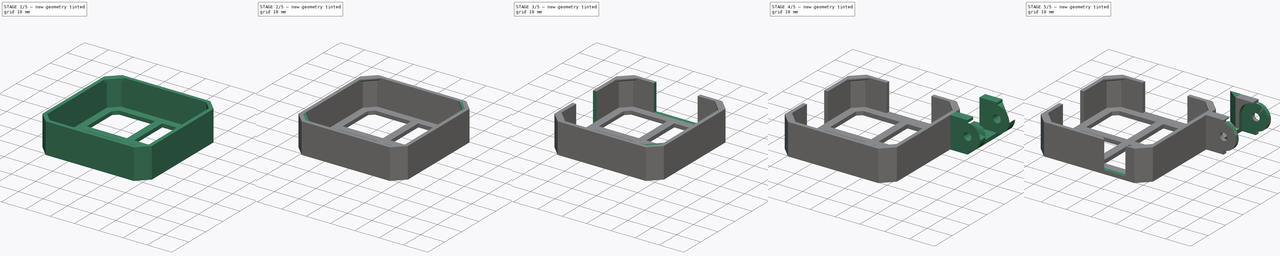
[diagram: build sequence overview — one tinted view per stage of 5, left to right]
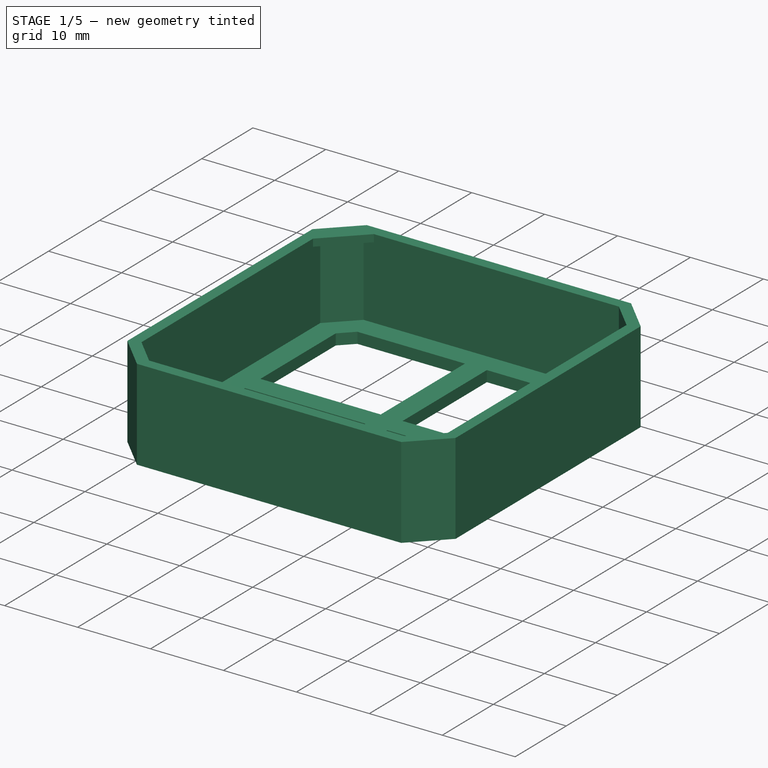
[diagram: stage 1 of 5 — iso view after this stage's code; geometry added in this stage tinted green]
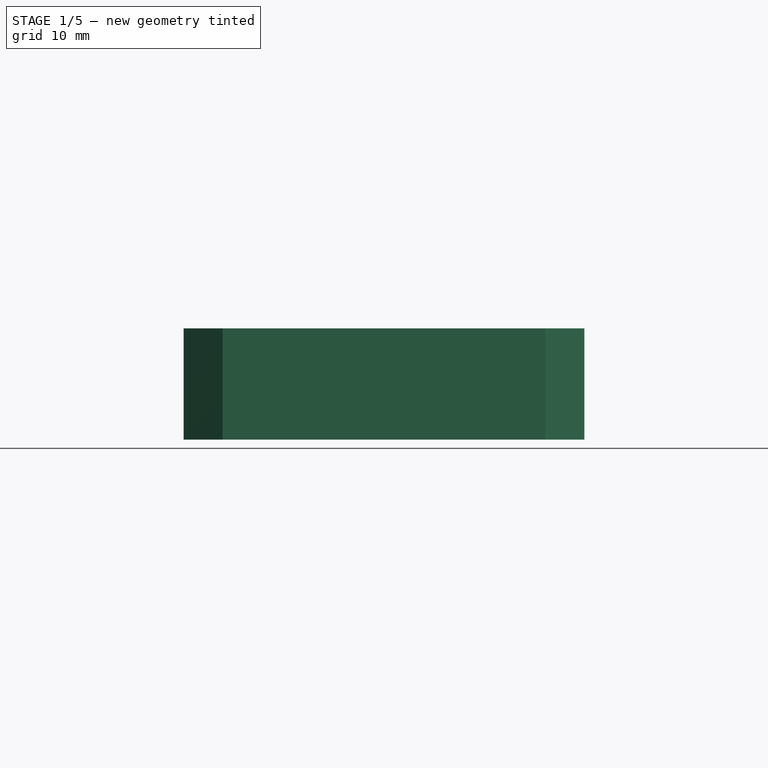
[diagram: stage 1 of 5 — front view after this stage's code; geometry added in this stage tinted green]
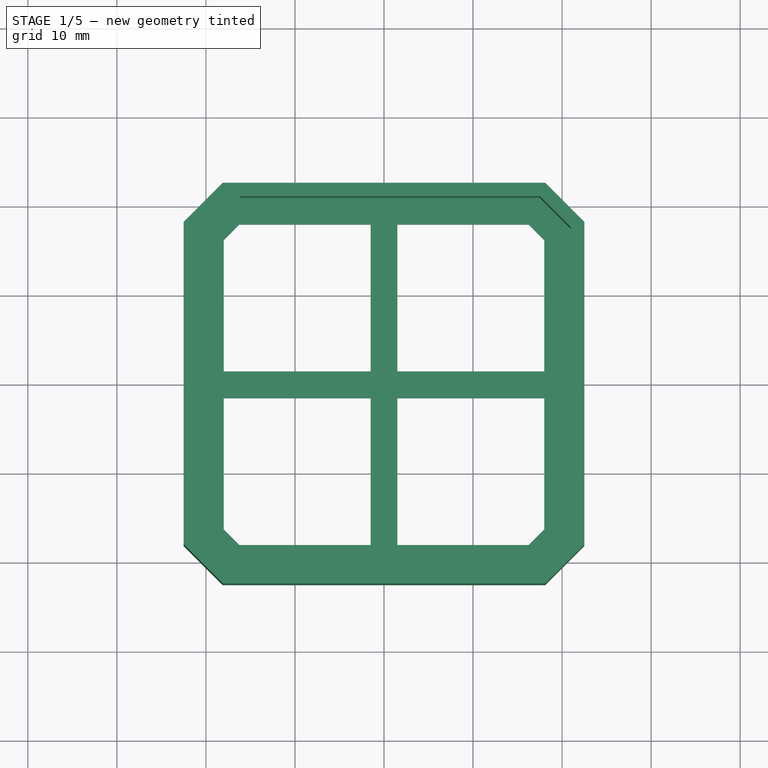
[diagram: stage 1 of 5 — top view after this stage's code; geometry added in this stage tinted green]
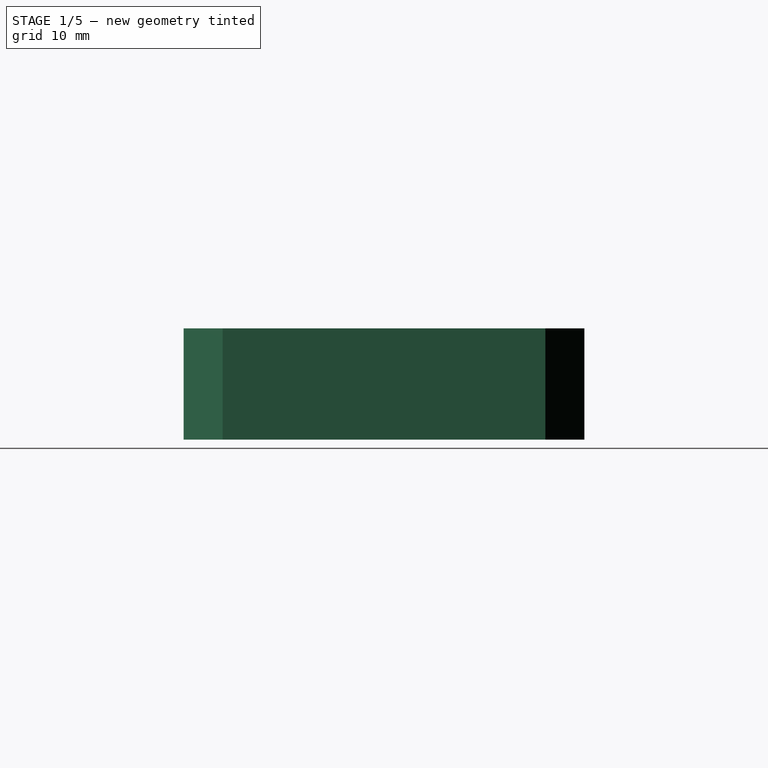
[diagram: stage 1 of 5 — right view after this stage's code; geometry added in this stage tinted green]
FCSTD DOCUMENT  (FreeCAD 0.17R13541 (Git))
Label: CableCareerExtruder1
License: All rights reserved
LicenseURL: http://en.wikipedia.org/wiki/All_rights_reserved
objects: Sketcher::SketchObject×18, PartDesign::Pocket×9, PartDesign::Pad×8, PartDesign::Chamfer×4, PartDesign::Body×1
note: 57 computed .brp shape members not serialized (recipe doc carries the construction recipe); baked Part::Feature solids carry a one-line shape summary decoded from their .brp

FEATURE [Sketcher::SketchObject] Sketch
  MapMode = 5
  Support = -> [XY_Plane]
  sketch-geometry (8):
    g0: LineSegment StartX=-17.5 StartY=21 StartZ=0 EndX=17.5 EndY=21 EndZ=0
    g1: LineSegment StartX=17.5 StartY=21 StartZ=0 EndX=21 EndY=17.5 EndZ=0
    g2: LineSegment StartX=21 StartY=17.5 StartZ=0 EndX=21 EndY=-17.5 EndZ=0
    g3: LineSegment StartX=21 StartY=-17.5 StartZ=0 EndX=17.5 EndY=-21 EndZ=0
    g4: LineSegment StartX=17.5 StartY=-21 StartZ=0 EndX=-17.5 EndY=-21 EndZ=0
    g5: LineSegment StartX=-17.5 StartY=-21 StartZ=0 EndX=-21 EndY=-17.5 EndZ=0
    g6: LineSegment StartX=-21 StartY=-17.5 StartZ=0 EndX=-21 EndY=17.5 EndZ=0
    g7: LineSegment StartX=-21 StartY=17.5 StartZ=0 EndX=-17.5 EndY=21 EndZ=0
  constraints (24):
    c: Coincident(g0,g1)
    c: Coincident(g1,g2)
    c: Coincident(g2,g3)
    c: Coincident(g3,g4)
    c: Coincident(g4,g5)
    c: Coincident(g5,g6)
    c: Coincident(g6,g7)
    c: Coincident(g7,g0)
    c: Horizontal(g0)
    c: Horizontal(g4)
    c: Vertical(g6)
    c: Vertical(g2)
    c: Angle(g7,g0) = 2.35619
    c: Angle(g0,g1) = 2.35619
    c: Angle(g4,g5) = 2.35619
    c: Angle(g3,g4) = 2.35619
    c: DistanceX(g0,g0) = 35
    c: DistanceX(g4,g4) = 35
    c: DistanceY(g6,g6) = 35
    c: DistanceY(g2,g2) = 35
    c: DistanceX(g6,g1) = 42
    c: DistanceY(g6,g1) = 0
    c: Distance(g-1,g0) = 21
    c: Distance(g-1,g6) = 21
FEATURE [Sketcher::SketchObject] Sketch001
  ExternalGeometry = -> [Sketch]
  MapMode = 5
  Support = -> [XY_Plane]
  sketch-geometry (8):
    g0: LineSegment StartX=-22.5 StartY=18.1213 StartZ=0 EndX=-18.1213 EndY=22.5 EndZ=0
    g1: LineSegment StartX=-18.1213 StartY=22.5 StartZ=0 EndX=18.1213 EndY=22.5 EndZ=0
    g2: LineSegment StartX=18.1213 StartY=22.5 StartZ=0 EndX=22.5 EndY=18.1213 EndZ=0
    g3: LineSegment StartX=22.5 StartY=18.1213 StartZ=0 EndX=22.5 EndY=-18.1213 EndZ=0
    g4: LineSegment StartX=22.5 StartY=-18.1213 StartZ=0 EndX=18.1213 EndY=-22.5 EndZ=0
    g5: LineSegment StartX=18.1213 StartY=-22.5 StartZ=0 EndX=-18.1213 EndY=-22.5 EndZ=0
    g6: LineSegment StartX=-18.1213 StartY=-22.5 StartZ=0 EndX=-22.5 EndY=-18.1213 EndZ=0
    g7: LineSegment StartX=-22.5 StartY=-18.1213 StartZ=0 EndX=-22.5 EndY=18.1213 EndZ=0
  constraints (24):
    c: Coincident(g0,g1)
    c: Coincident(g1,g2)
    c: Coincident(g2,g3)
    c: Coincident(g3,g4)
    c: Coincident(g4,g5)
    c: Coincident(g5,g6)
    c: Coincident(g6,g7)
    c: Coincident(g7,g0)
    c: Parallel(g-3,g0)
    c: Parallel(g-5,g2)
    c: Parallel(g4,g-10)
    c: Parallel(g6,g-9)
    c: Parallel(g5,g-8)
    c: Parallel(g7,g-7)
    c: Parallel(g-4,g1)
    c: Parallel(g-6,g3)
    c: Distance(g-4,g1) = 1.5
    c: Distance(g-7,g7) = 1.5
    c: Distance(g-10,g5) = 1.5
    c: Distance(g-10,g3) = 1.5
    c: Distance(g-9,g6) = 1.5
    c: Distance(g-7,g0) = 1.5
    c: Distance(g-5,g2) = 1.5
    c: Distance(g-10,g4) = 1.5
FEATURE [PartDesign::Pad] Pad
  Length = 12.5
  Length2 = 100
  Profile = -> Sketch001
  Type = 0
FEATURE [Sketcher::SketchObject] Sketch002
  ExternalGeometry = -> [Sketch]
  MapMode = 5
  Placement = pos=(0,0,12.5) rot=(0,0,1;0rad)
  Support = -> [Pad]
  sketch-geometry (8):
    g0: LineSegment StartX=-21 StartY=17.5 StartZ=0 EndX=-17.5 EndY=21 EndZ=0
    g1: LineSegment StartX=-17.5 StartY=21 StartZ=0 EndX=17.5 EndY=21 EndZ=0
    g2: LineSegment StartX=17.5 StartY=21 StartZ=0 EndX=21 EndY=17.5 EndZ=0
    g3: LineSegment StartX=21 StartY=17.5 StartZ=0 EndX=21 EndY=-17.5 EndZ=0
    g4: LineSegment StartX=21 StartY=-17.5 StartZ=0 EndX=17.5 EndY=-21 EndZ=0
    g5: LineSegment StartX=17.5 StartY=-21 StartZ=0 EndX=-17.5 EndY=-21 EndZ=0
    g6: LineSegment StartX=-17.5 StartY=-21 StartZ=0 EndX=-21 EndY=-17.5 EndZ=0
    g7: LineSegment StartX=-21 StartY=-17.5 StartZ=0 EndX=-21 EndY=17.5 EndZ=0
  constraints (16):
    c: Coincident(g0,g1)
    c: Coincident(g1,g2)
    c: Coincident(g2,g3)
    c: Coincident(g3,g4)
    c: Coincident(g4,g5)
    c: Coincident(g5,g6)
    c: Coincident(g7,g0)
    c: Coincident(g0,g-10)
    c: Coincident(g-4,g0)
    c: Coincident(g-5,g1)
    c: Coincident(g-6,g2)
    c: Coincident(g-7,g3)
    c: Coincident(g-8,g4)
    c: Coincident(g5,g-9)
    c: Coincident(g6,g7)
    c: Coincident(g-10,g6)
FEATURE [PartDesign::Pocket] Pocket
  BaseFeature = -> Pad
  Length = 11
  Length2 = 100
  Profile = -> Sketch002
  Type = 0
FEATURE [Sketcher::SketchObject] Sketch003
  ExternalGeometry = -> [Sketch]
  MapMode = 5
  Placement = pos=(0,0,1.5) rot=(0,0,1;0rad)
  Support = -> [Pocket]
  sketch-geometry (20):
    g0: LineSegment StartX=-16.2574 StartY=18 StartZ=0 EndX=-18 EndY=16.2574 EndZ=0
    g1: LineSegment StartX=-18 StartY=16.2574 StartZ=0 EndX=-18 EndY=1.5 EndZ=0
    g2: LineSegment StartX=-18 StartY=-16.2574 StartZ=0 EndX=-16.2574 EndY=-18 EndZ=0
    g3: LineSegment StartX=-16.2574 StartY=-18 StartZ=0 EndX=-1.5 EndY=-18 EndZ=0
    g4: LineSegment StartX=16.2574 StartY=-18 StartZ=0 EndX=18 EndY=-16.2574 EndZ=0
    g5: LineSegment StartX=18 StartY=1.5 StartZ=0 EndX=18 EndY=16.2574 EndZ=0
    g6: LineSegment StartX=18 StartY=16.2574 StartZ=0 EndX=16.2574 EndY=18 EndZ=0
    g7: LineSegment StartX=-1.5 StartY=18 StartZ=0 EndX=-16.2574 EndY=18 EndZ=0
    g8: LineSegment StartX=-1.5 StartY=18 StartZ=0 EndX=-1.5 EndY=1.5 EndZ=0
    g9: LineSegment StartX=-1.5 StartY=1.5 StartZ=0 EndX=-18 EndY=1.5 EndZ=0
    g10: LineSegment StartX=-18 StartY=-16.2574 StartZ=0 EndX=-18 EndY=-1.5 EndZ=0
    g11: LineSegment StartX=-18 StartY=-1.5 StartZ=0 EndX=-1.5 EndY=-1.5 EndZ=0
    g12: LineSegment StartX=-1.5 StartY=-1.5 StartZ=0 EndX=-1.5 EndY=-18 EndZ=0
    g13: LineSegment StartX=16.2574 StartY=18 StartZ=0 EndX=1.5 EndY=18 EndZ=0
    g14: LineSegment StartX=1.5 StartY=18 StartZ=0 EndX=1.5 EndY=1.5 EndZ=0
    g15: LineSegment StartX=1.5 StartY=1.5 StartZ=0 EndX=18 EndY=1.5 EndZ=0
    g16: LineSegment StartX=18 StartY=-16.2574 StartZ=0 EndX=18 EndY=-1.5 EndZ=0
    g17: LineSegment StartX=18 StartY=-1.5 StartZ=0 EndX=1.5 EndY=-1.5 EndZ=0
    g18: LineSegment StartX=1.5 StartY=-1.5 StartZ=0 EndX=1.5 EndY=-18 EndZ=0
    g19: LineSegment StartX=1.5 StartY=-18 StartZ=0 EndX=16.2574 EndY=-18 EndZ=0
  constraints (60):
    c: Coincident(g0,g1)
    c: Coincident(g2,g3)
    c: Coincident(g5,g6)
    c: Coincident(g7,g0)
    c: Parallel(g7,g-4)
    c: Parallel(g6,g-10)
    c: Parallel(g5,g-9)
    c: Parallel(g4,g-8)
    c: Parallel(g3,g-7)
    c: Parallel(g-6,g2)
    c: Parallel(g1,g-5)
    c: Parallel(g0,g-3)
    c: Distance(g0,g-4) = 3
    c: Distance(g5,g-9) = 3
    c: Distance(g3,g-7) = 3
    c: Distance(g1,g-5) = 3
    c: Distance(g-5,g0) = 3
    c: Distance(g-10,g6) = 3
    c: Distance(g4,g-8) = 3
    c: Distance(g2,g-6) = 3
    c: Coincident(g8,g9)
    c: Horizontal(g9)
    c: Vertical(g8)
    c: Coincident(g8,g7)
    c: Coincident(g9,g1)
    c: DistanceX(g8,g-1) = 1.5
    c: DistanceY(g-1,g8) = 1.5
    c: Coincident(g10,g11)
    c: Coincident(g11,g12)
    c: Vertical(g12)
    c: Vertical(g10)
    c: Horizontal(g11)
    c: Coincident(g2,g10)
    c: Distance(g10,g-5) = 3
    c: DistanceY(g10,g1) = 3
    c: Coincident(g3,g12)
    c: Coincident(g13,g14)
    c: Coincident(g14,g15)
    c: Coincident(g16,g17)
    c: Coincident(g17,g18)
    c: Coincident(g18,g19)
    c: Horizontal(g13)
    c: Horizontal(g15)
    c: Horizontal(g17)
    c: Horizontal(g19)
    c: Vertical(g18)
    c: Vertical(g16)
    c: Vertical(g14)
    c: DistanceX(g7,g13) = 3
    c: DistanceX(g3,g18) = 3
    c: DistanceY(g16,g15) = 3
    c: Distance(g13,g-4) = 3
    c: Coincident(g6,g13)
    c: Coincident(g5,g15)
    c: Coincident(g4,g19)
    c: Coincident(g4,g16)
    c: DistanceX(g-1,g17) = 1.5
    c: DistanceY(g17,g-1) = 1.5
    c: Distance(g16,g-9) = 3
    c: Distance(g18,g-7) = 3
FEATURE [PartDesign::Pocket] Pocket001
  BaseFeature = -> Pocket
  Length = 1.5
  Length2 = 100
  Profile = -> Sketch003
  Type = 0
FEATURE [Sketcher::SketchObject] Sketch052
  ExternalGeometry = -> [Pocket001]
  MapMode = 5
  Placement = pos=(-19.25,19.25,0) rot=(0.862856,0.357407,0.357407;1.71777rad)
  Support = -> [Pocket001]
  sketch-geometry (4):
    g0: LineSegment StartX=3.5 StartY=12.5 StartZ=0 EndX=-3.5 EndY=12.5 EndZ=0
    g1: LineSegment StartX=-3.5 StartY=12.5 StartZ=0 EndX=-3.5 EndY=11.5 EndZ=0
    g2: LineSegment StartX=-3.5 StartY=11.5 StartZ=0 EndX=3.5 EndY=11.5 EndZ=0
    g3: LineSegment StartX=3.5 StartY=11.5 StartZ=0 EndX=3.5 EndY=12.5 EndZ=0
  constraints (12):
    c: Coincident(g0,g1)
    c: Coincident(g1,g2)
    c: Coincident(g2,g3)
    c: Coincident(g3,g0)
    c: Horizontal(g0)
    c: Horizontal(g2)
    c: Vertical(g1)
    c: Vertical(g3)
    c: PointOnObject(g0,g-3)
    c: DistanceX(g-2,g0) = 3.5
    c: DistanceX(g0,g0) = 7
    c: DistanceY(g1,g1) = -1
FEATURE [PartDesign::Pad] Pad001
  BaseFeature = -> Pocket001
  Length = 1
  Length2 = 100
  Profile = -> Sketch052
  Type = 0
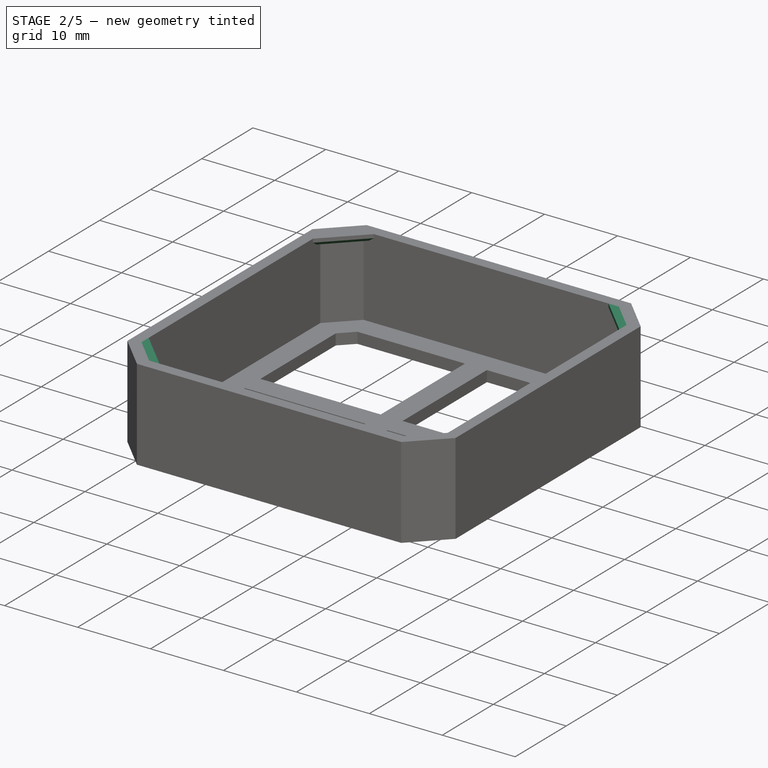
[diagram: stage 2 of 5 — iso view after this stage's code; geometry added in this stage tinted green]
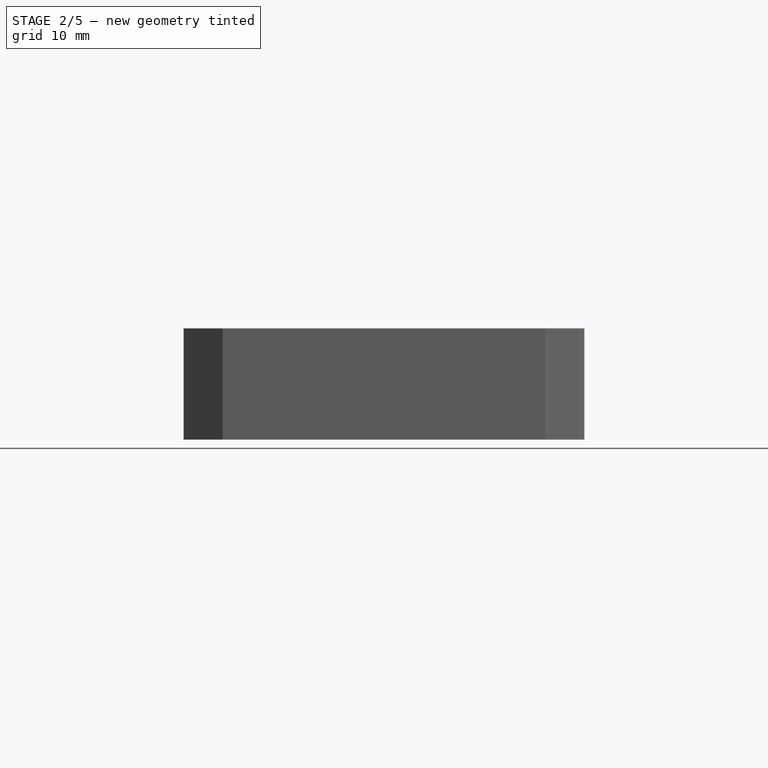
[diagram: stage 2 of 5 — front view after this stage's code; geometry added in this stage tinted green]
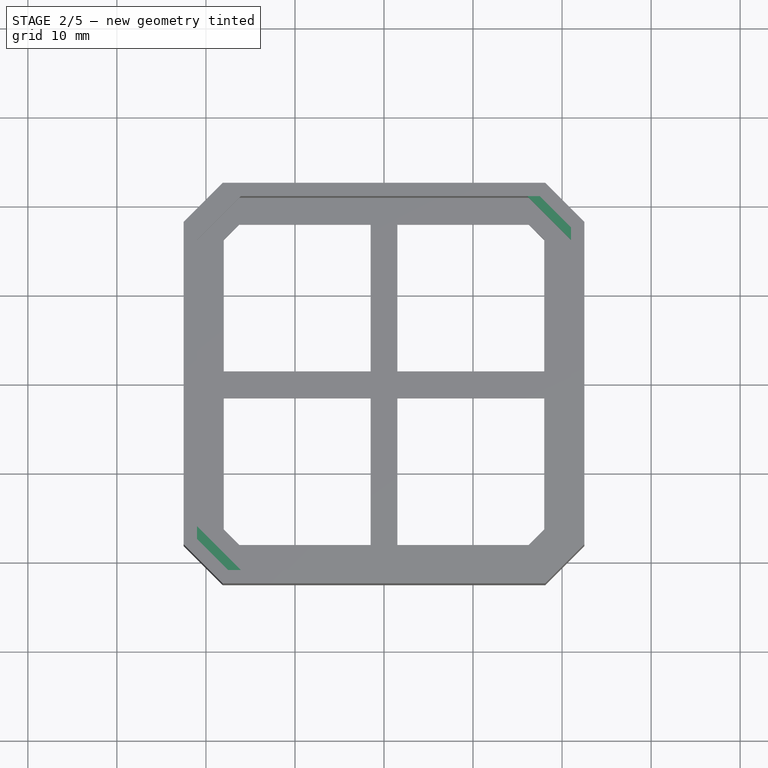
[diagram: stage 2 of 5 — top view after this stage's code; geometry added in this stage tinted green]
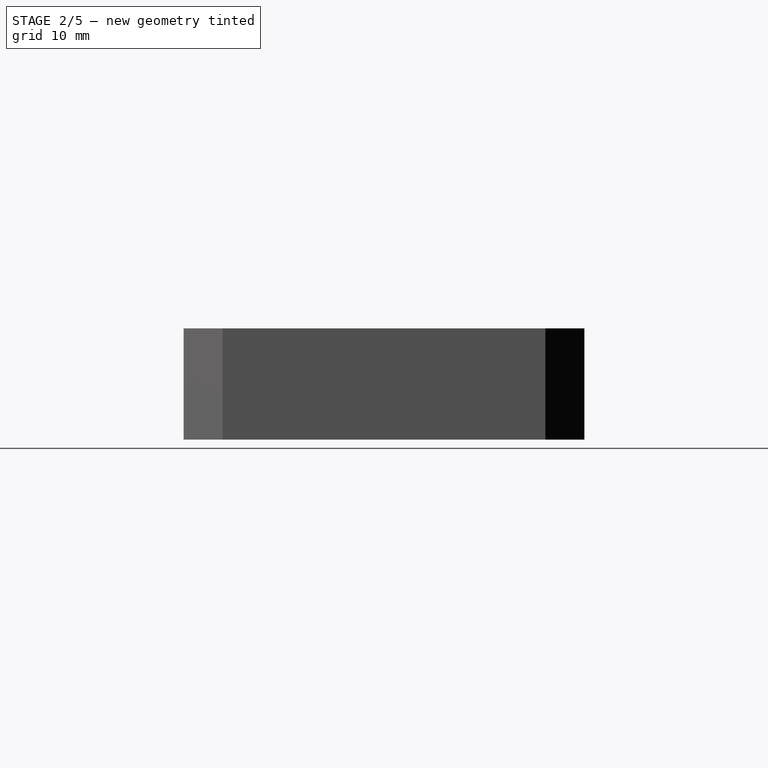
[diagram: stage 2 of 5 — right view after this stage's code; geometry added in this stage tinted green]
FEATURE [PartDesign::Chamfer] Chamfer
  Base = -> Pad001 [Edge122]
  BaseFeature = -> Pad001
  Size = 0.5
FEATURE [Sketcher::SketchObject] Sketch053
  ExternalGeometry = -> [Chamfer]
  MapMode = 5
  Placement = pos=(19.25,19.25,0) rot=(0.862856,-0.357407,-0.357407;1.71777rad)
  Support = -> [Chamfer]
  sketch-geometry (4):
    g0: LineSegment StartX=-3.5 StartY=12.5 StartZ=0 EndX=3.5 EndY=12.5 EndZ=0
    g1: LineSegment StartX=3.5 StartY=12.5 StartZ=0 EndX=3.5 EndY=11.5 EndZ=0
    g2: LineSegment StartX=3.5 StartY=11.5 StartZ=0 EndX=-3.5 EndY=11.5 EndZ=0
    g3: LineSegment StartX=-3.5 StartY=11.5 StartZ=0 EndX=-3.5 EndY=12.5 EndZ=0
  constraints (12):
    c: Coincident(g0,g1)
    c: Coincident(g1,g2)
    c: Coincident(g2,g3)
    c: Coincident(g3,g0)
    c: Horizontal(g0)
    c: Horizontal(g2)
    c: Vertical(g1)
    c: Vertical(g3)
    c: DistanceX(g-2,g0) = 3.5
    c: DistanceY(g3,g3) = 1
    c: DistanceX(g0,g0) = 7
    c: PointOnObject(g0,g-3)
FEATURE [PartDesign::Pad] Pad002
  BaseFeature = -> Chamfer
  Length = 1
  Length2 = 100
  Profile = -> Sketch053
  Type = 0
FEATURE [PartDesign::Chamfer] Chamfer001
  Base = -> Pad002 [Edge76]
  BaseFeature = -> Pad002
  Size = 0.5
FEATURE [Sketcher::SketchObject] Sketch054
  ExternalGeometry = -> [Chamfer001]
  MapMode = 5
  Placement = pos=(-19.25,-19.25,0) rot=(0.281085,0.678598,0.678598;2.59356rad)
  Support = -> [Chamfer001]
  sketch-geometry (4):
    g0: LineSegment StartX=-3.5 StartY=12.5 StartZ=0 EndX=3.5 EndY=12.5 EndZ=0
    g1: LineSegment StartX=3.5 StartY=12.5 StartZ=0 EndX=3.5 EndY=11.5 EndZ=0
    g2: LineSegment StartX=3.5 StartY=11.5 StartZ=0 EndX=-3.5 EndY=11.5 EndZ=0
    g3: LineSegment StartX=-3.5 StartY=11.5 StartZ=0 EndX=-3.5 EndY=12.5 EndZ=0
  constraints (12):
    c: Coincident(g0,g1)
    c: Coincident(g1,g2)
    c: Coincident(g2,g3)
    c: Coincident(g3,g0)
    c: Horizontal(g0)
    c: Horizontal(g2)
    c: Vertical(g1)
    c: Vertical(g3)
    c: PointOnObject(g0,g-3)
    c: DistanceX(g-2,g1) = 3.5
    c: DistanceX(g2,g2) = 7
    c: DistanceY(g3,g3) = -1
FEATURE [PartDesign::Pad] Pad003
  BaseFeature = -> Chamfer001
  Length = 1
  Length2 = 100
  Profile = -> Sketch054
  Type = 0
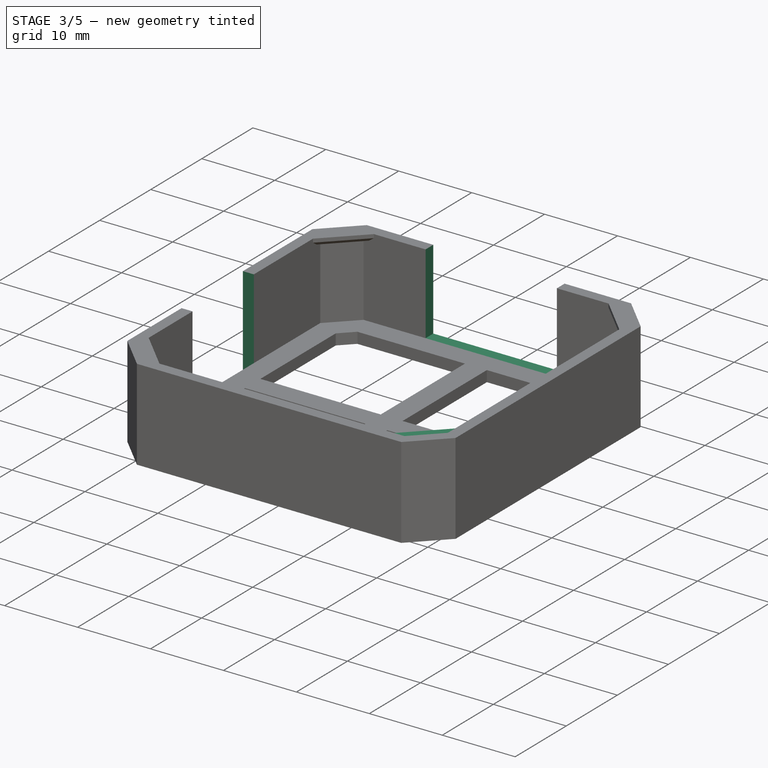
[diagram: stage 3 of 5 — iso view after this stage's code; geometry added in this stage tinted green]
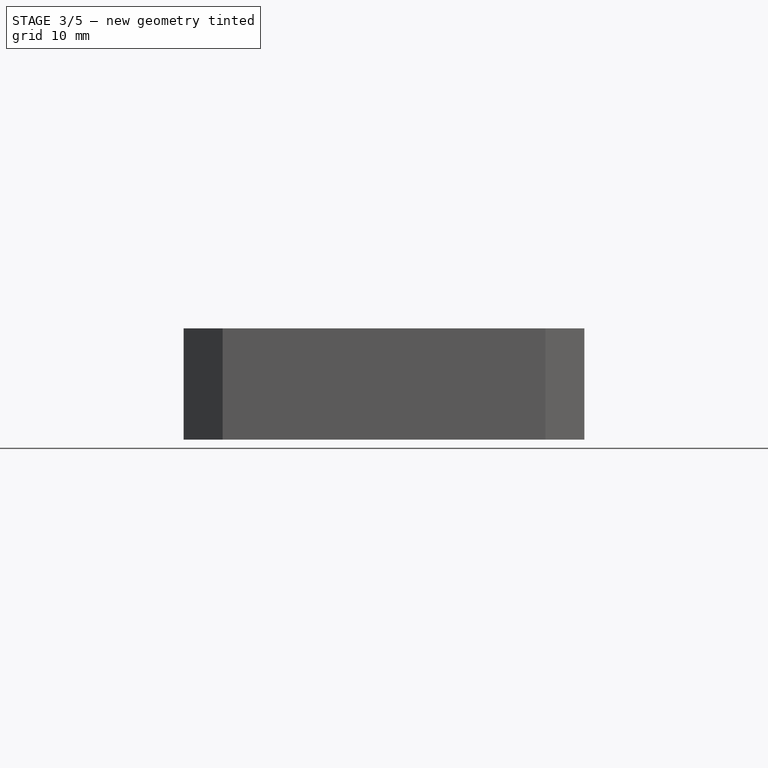
[diagram: stage 3 of 5 — front view after this stage's code; geometry added in this stage tinted green]
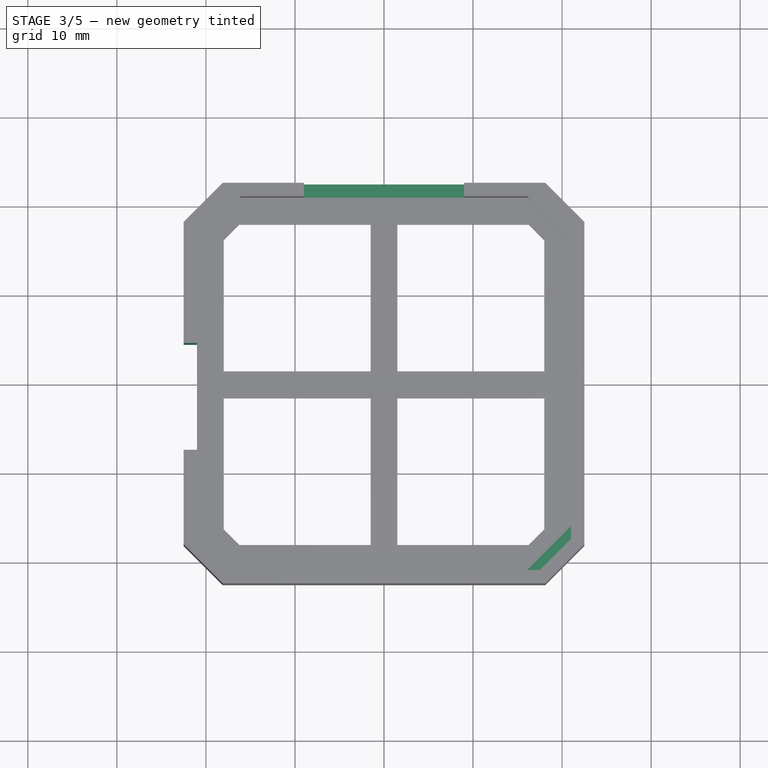
[diagram: stage 3 of 5 — top view after this stage's code; geometry added in this stage tinted green]
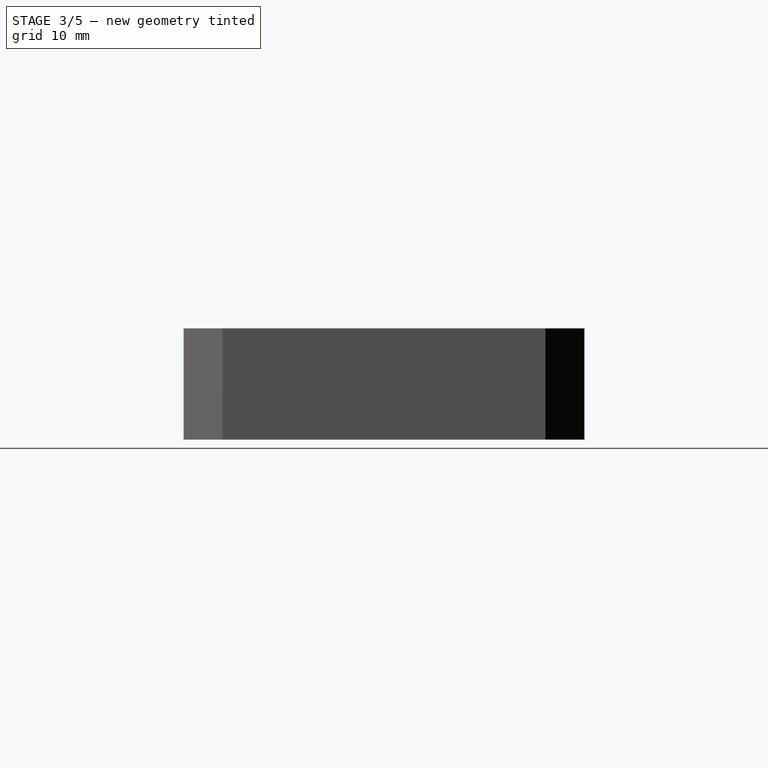
[diagram: stage 3 of 5 — right view after this stage's code; geometry added in this stage tinted green]
FEATURE [PartDesign::Chamfer] Chamfer002
  Base = -> Pad003 [Edge159]
  BaseFeature = -> Pad003
  Size = 0.5
FEATURE [Sketcher::SketchObject] Sketch055
  ExternalGeometry = -> [Chamfer002]
  MapMode = 5
  Placement = pos=(19.25,-19.25,0) rot=(-0.281085,0.678598,0.678598;3.68962rad)
  Support = -> [Chamfer002]
  sketch-geometry (4):
    g0: LineSegment StartX=-3.5 StartY=12.5 StartZ=0 EndX=3.5 EndY=12.5 EndZ=0
    g1: LineSegment StartX=3.5 StartY=12.5 StartZ=0 EndX=3.5 EndY=11.5 EndZ=0
    g2: LineSegment StartX=3.5 StartY=11.5 StartZ=0 EndX=-3.5 EndY=11.5 EndZ=0
    g3: LineSegment StartX=-3.5 StartY=11.5 StartZ=0 EndX=-3.5 EndY=12.5 EndZ=0
  constraints (12):
    c: Coincident(g0,g1)
    c: Coincident(g1,g2)
    c: Coincident(g2,g3)
    c: Coincident(g3,g0)
    c: Horizontal(g0)
    c: Horizontal(g2)
    c: Vertical(g1)
    c: Vertical(g3)
    c: DistanceY(g1,g1) = 1
    c: PointOnObject(g-3,g0)
    c: DistanceX(g-2,g0) = 3.5
    c: DistanceX(g0,g0) = 7
FEATURE [PartDesign::Pad] Pad004
  BaseFeature = -> Chamfer002
  Length = 1
  Length2 = 100
  Profile = -> Sketch055
  Type = 0
FEATURE [PartDesign::Chamfer] Chamfer003
  Base = -> Pad004 [Edge101]
  BaseFeature = -> Pad004
  Size = 0.5
FEATURE [Sketcher::SketchObject] Sketch056
  ExternalGeometry = -> [Chamfer003]
  MapMode = 5
  Placement = pos=(0,0,12.5) rot=(0,0,1;0rad)
  Support = -> [Chamfer003]
  sketch-geometry (4):
    g0: LineSegment StartX=-22.5 StartY=4.5 StartZ=0 EndX=-21 EndY=4.5 EndZ=0
    g1: LineSegment StartX=-21 StartY=4.5 StartZ=0 EndX=-21 EndY=-7.5 EndZ=0
    g2: LineSegment StartX=-21 StartY=-7.5 StartZ=0 EndX=-22.5 EndY=-7.5 EndZ=0
    g3: LineSegment StartX=-22.5 StartY=-7.5 StartZ=0 EndX=-22.5 EndY=4.5 EndZ=0
  constraints (12):
    c: Coincident(g0,g1)
    c: Coincident(g1,g2)
    c: Coincident(g2,g3)
    c: Coincident(g3,g0)
    c: Horizontal(g0)
    c: Horizontal(g2)
    c: Vertical(g1)
    c: Vertical(g3)
    c: PointOnObject(g2,g-3)
    c: PointOnObject(g1,g-4)
    c: DistanceY(g-5,g0) = 6
    c: DistanceY(g3,g3) = 12
FEATURE [PartDesign::Pocket] Pocket002
  BaseFeature = -> Chamfer003
  Length = 12.5
  Length2 = 100
  Profile = -> Sketch056
  Type = 0
FEATURE [Sketcher::SketchObject] Sketch057
  ExternalGeometry = -> [Pocket002]
  MapMode = 5
  Placement = pos=(0,0,12.5) rot=(0,0,1;0rad)
  Support = -> [Pocket002]
  sketch-geometry (4):
    g0: LineSegment StartX=-9 StartY=22.5 StartZ=0 EndX=9 EndY=22.5 EndZ=0
    g1: LineSegment StartX=9 StartY=22.5 StartZ=0 EndX=9 EndY=21 EndZ=0
    g2: LineSegment StartX=9 StartY=21 StartZ=0 EndX=-9 EndY=21 EndZ=0
    g3: LineSegment StartX=-9 StartY=21 StartZ=0 EndX=-9 EndY=22.5 EndZ=0
  constraints (12):
    c: Coincident(g0,g1)
    c: Coincident(g1,g2)
    c: Coincident(g2,g3)
    c: Coincident(g3,g0)
    c: Horizontal(g0)
    c: Horizontal(g2)
    c: Vertical(g1)
    c: Vertical(g3)
    c: PointOnObject(g0,g-3)
    c: PointOnObject(g1,g-4)
    c: DistanceX(g0,g0) = 18
    c: DistanceX(g-2,g1) = 9
FEATURE [PartDesign::Pocket] Pocket003
  BaseFeature = -> Pocket002
  Length = 11
  Length2 = 100
  Profile = -> Sketch057
  Type = 0
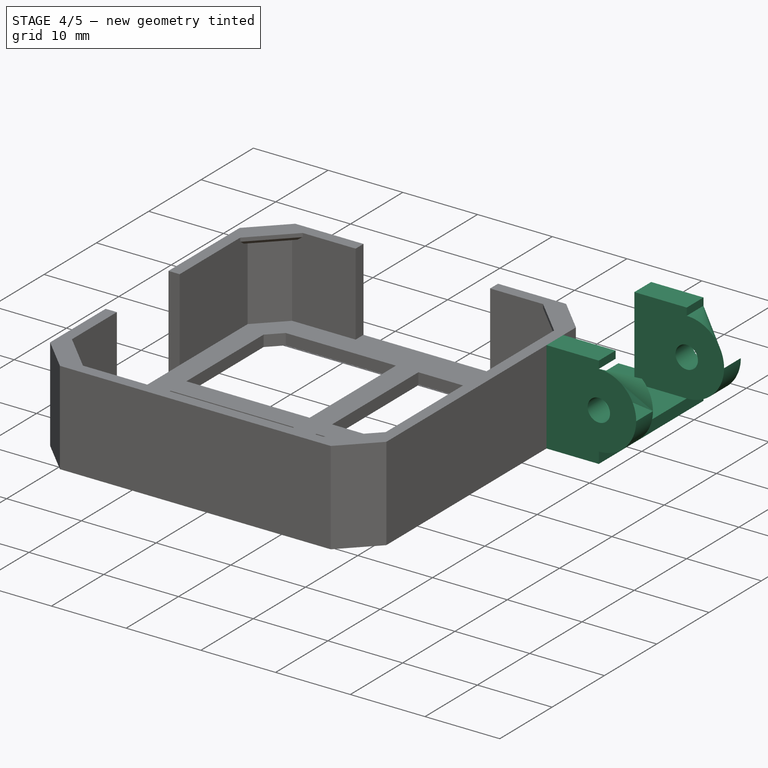
[diagram: stage 4 of 5 — iso view after this stage's code; geometry added in this stage tinted green]
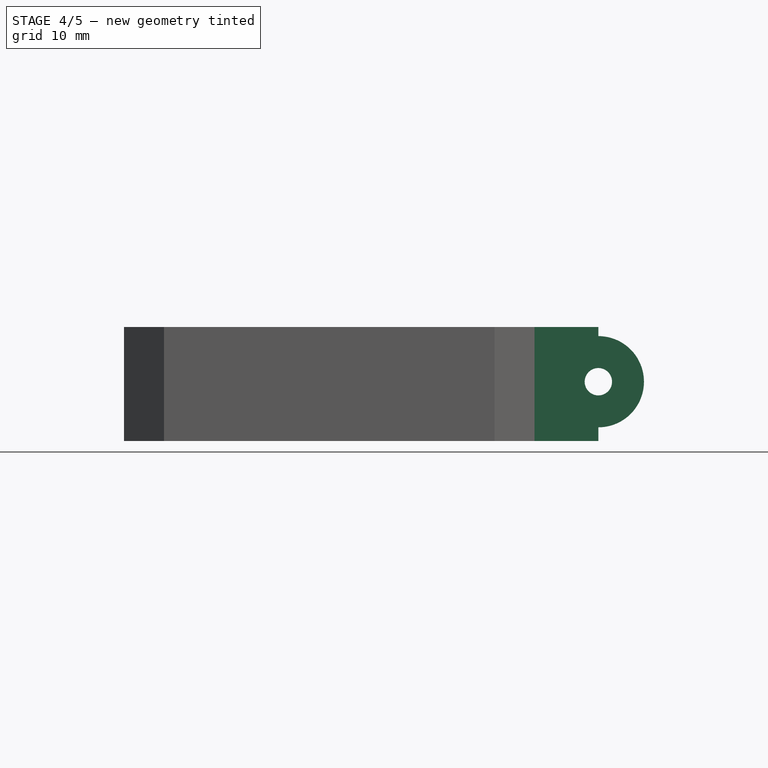
[diagram: stage 4 of 5 — front view after this stage's code; geometry added in this stage tinted green]
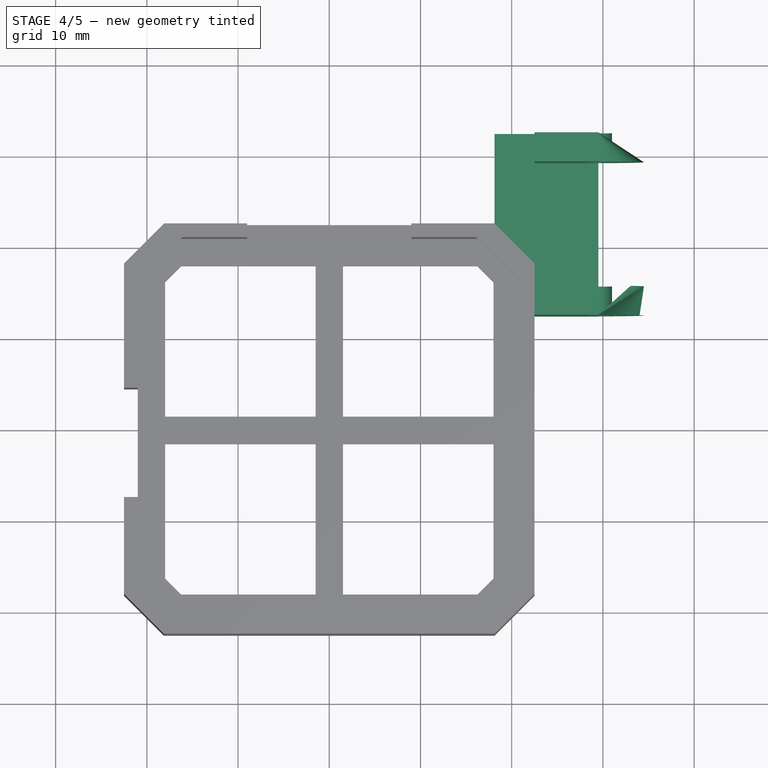
[diagram: stage 4 of 5 — top view after this stage's code; geometry added in this stage tinted green]
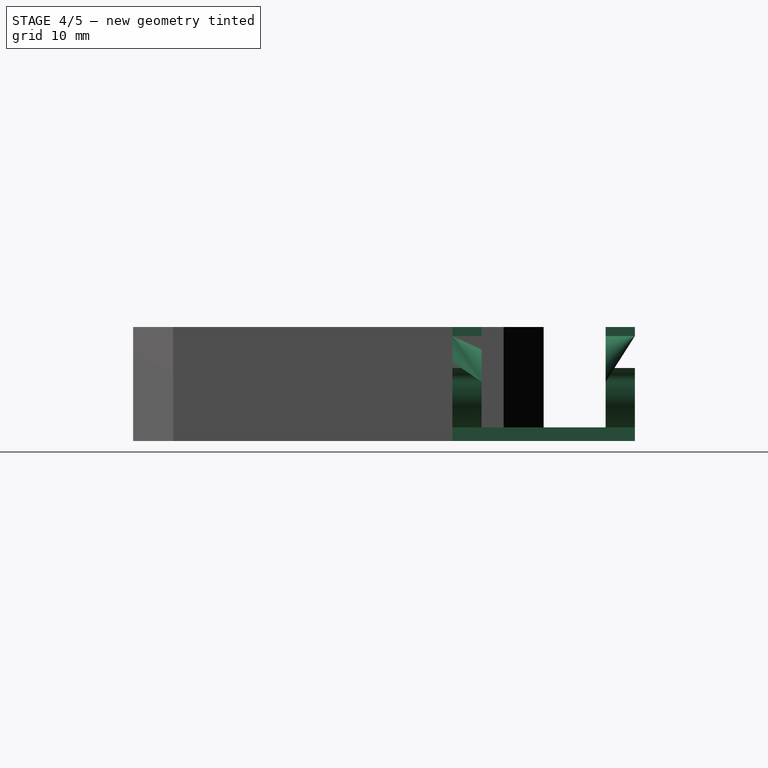
[diagram: stage 4 of 5 — right view after this stage's code; geometry added in this stage tinted green]
FEATURE [Sketcher::SketchObject] Sketch058
  ExternalGeometry = -> [Pocket003]
  MapMode = 5
  Support = -> [XY_Plane]
  sketch-geometry (6):
    g0: LineSegment StartX=22.5 StartY=12.5 StartZ=0 EndX=34.5 EndY=12.5 EndZ=0
    g1: LineSegment StartX=34.5 StartY=12.5 StartZ=0 EndX=34.5 EndY=32.5 EndZ=0
    g2: LineSegment StartX=34.5 StartY=32.5 StartZ=0 EndX=18.1213 EndY=32.5 EndZ=0
    g3: LineSegment StartX=18.1213 StartY=32.5 StartZ=0 EndX=18.1213 EndY=22.5 EndZ=0
    g4: LineSegment StartX=18.1213 StartY=22.5 StartZ=0 EndX=22.5 EndY=18.1213 EndZ=0
    g5: LineSegment StartX=22.5 StartY=18.1213 StartZ=0 EndX=22.5 EndY=12.5 EndZ=0
  constraints (16):
    c: Coincident(g0,g1)
    c: Coincident(g1,g2)
    c: Coincident(g3,g-3)
    c: Horizontal(g0)
    c: Horizontal(g2)
    c: Vertical(g1)
    c: DistanceY(g1,g1) = 20
    c: DistanceX(g0,g0) = 12
    c: PointOnObject(g0,g-4)
    c: DistanceY(g3,g2) = 10
    c: Coincident(g4,g5)
    c: Coincident(g5,g0)
    c: Coincident(g4,g-4)
    c: Coincident(g4,g3)
    c: Vertical(g3)
    c: Coincident(g3,g2)
FEATURE [PartDesign::Pad] Pad005
  BaseFeature = -> Pocket003
  Length = 12.5
  Length2 = 100
  Profile = -> Sketch058
  Type = 0
FEATURE [Sketcher::SketchObject] Sketch059
  ExternalGeometry = -> [Pad005]
  MapMode = 5
  Placement = pos=(0,12.5,0) rot=(1,0,0;1.5708rad)
  Support = -> [Pad005]
  sketch-geometry (6):
    g0: ArcOfCircle CenterX=29.5 CenterY=6.5 CenterZ=0 NormalX=0 NormalY=0 NormalZ=1 AngleXU=0 Radius=5 StartAngle=4.71239 EndAngle=7.85398
    g1: LineSegment StartX=29.5 StartY=11.5 StartZ=0 EndX=29.5 EndY=12.5 EndZ=0
    g2: LineSegment StartX=29.5 StartY=12.5 StartZ=0 EndX=35.5 EndY=12.5 EndZ=0
    g3: LineSegment StartX=35.5 StartY=12.5 StartZ=0 EndX=35.5 EndY=0 EndZ=0
    g4: LineSegment StartX=35.5 StartY=0 StartZ=0 EndX=29.5 EndY=0 EndZ=0
    g5: LineSegment StartX=29.5 StartY=0 StartZ=0 EndX=29.5 EndY=1.5 EndZ=0
  constraints (19):
    c: Radius(g0) = 5
    c: Angle(g0) = 3.14159
    c: Coincident(g1,g2)
    c: Coincident(g2,g3)
    c: Coincident(g3,g4)
    c: Coincident(g4,g5)
    c: Coincident(g5,g0)
    c: Coincident(g0,g1)
    c: Vertical(g1)
    c: Vertical(g3)
    c: Vertical(g5)
    c: Horizontal(g4)
    c: Horizontal(g2)
    c: PointOnObject(g-4,g2)
    c: PointOnObject(g-5,g4)
    c: DistanceY(g1,g1) = 1
    c: DistanceX(g2,g2) = 6
    c: DistanceX(g4,g4) = 6
    c: Tangent(g0,g-4)
FEATURE [PartDesign::Pocket] Pocket004
  BaseFeature = -> Pad005
  Length = 20
  Length2 = 100
  Profile = -> Sketch059
  Type = 0
FEATURE [Sketcher::SketchObject] Sketch060
  ExternalGeometry = -> [Pocket004]
  MapMode = 5
  Placement = pos=(0,0,12.5) rot=(0,0,1;0rad)
  Support = -> [Pocket004]
  sketch-geometry (8):
    g0: LineSegment StartX=18.1213 StartY=22.5 StartZ=0 EndX=18.1213 EndY=32.5 EndZ=0
    g1: LineSegment StartX=22.5 StartY=29.3 StartZ=0 EndX=34.5 EndY=29.3 EndZ=0
    g2: LineSegment StartX=34.5 StartY=29.3 StartZ=0 EndX=34.5 EndY=15.7 EndZ=0
    g3: LineSegment StartX=34.5 StartY=15.7 StartZ=0 EndX=22.5 EndY=15.7 EndZ=0
    g4: LineSegment StartX=22.5 StartY=15.7 StartZ=0 EndX=22.5 EndY=18.1213 EndZ=0
    g5: LineSegment StartX=22.5 StartY=18.1213 StartZ=0 EndX=18.1213 EndY=22.5 EndZ=0
    g6: LineSegment StartX=18.1213 StartY=32.5 StartZ=0 EndX=22.5 EndY=32.5 EndZ=0
    g7: LineSegment StartX=22.5 StartY=32.5 StartZ=0 EndX=22.5 EndY=29.3 EndZ=0
  constraints (21):
    c: Coincident(g1,g2)
    c: Coincident(g2,g3)
    c: Coincident(g3,g4)
    c: Coincident(g4,g5)
    c: Coincident(g5,g0)
    c: Coincident(g0,g-4)
    c: Coincident(g4,g-5)
    c: PointOnObject(g3,g-5)
    c: Horizontal(g3)
    c: Horizontal(g1)
    c: Vertical(g2)
    c: PointOnObject(g1,g-7)
    c: DistanceY(g1,g-7) = 3.2
    c: DistanceY(g-7,g2) = 3.2
    c: Coincident(g0,g-8)
    c: Coincident(g6,g0)
    c: Horizontal(g6)
    c: Coincident(g1,g7)
    c: Vertical(g7)
    c: Coincident(g7,g6)
    c: DistanceX(g1,g4) = 0
FEATURE [PartDesign::Pocket] Pocket005
  BaseFeature = -> Pocket004
  Length = 11
  Length2 = 100
  Profile = -> Sketch060
  Type = 0
FEATURE [Sketcher::SketchObject] Sketch063
  MapMode = 5
  Placement = pos=(0,12.5,0) rot=(1,0,0;1.5708rad)
  sketch-geometry (1):
    g0: Circle CenterX=29.5 CenterY=6.5 CenterZ=0 NormalX=0 NormalY=0 NormalZ=1 AngleXU=0 Radius=1.5
  constraints (1):
    c: Radius(g0) = 1.5
FEATURE [PartDesign::Pocket] Pocket006
  BaseFeature = -> Pocket005
  Length = 20
  Length2 = 100
  Profile = -> Sketch063
  Type = 0
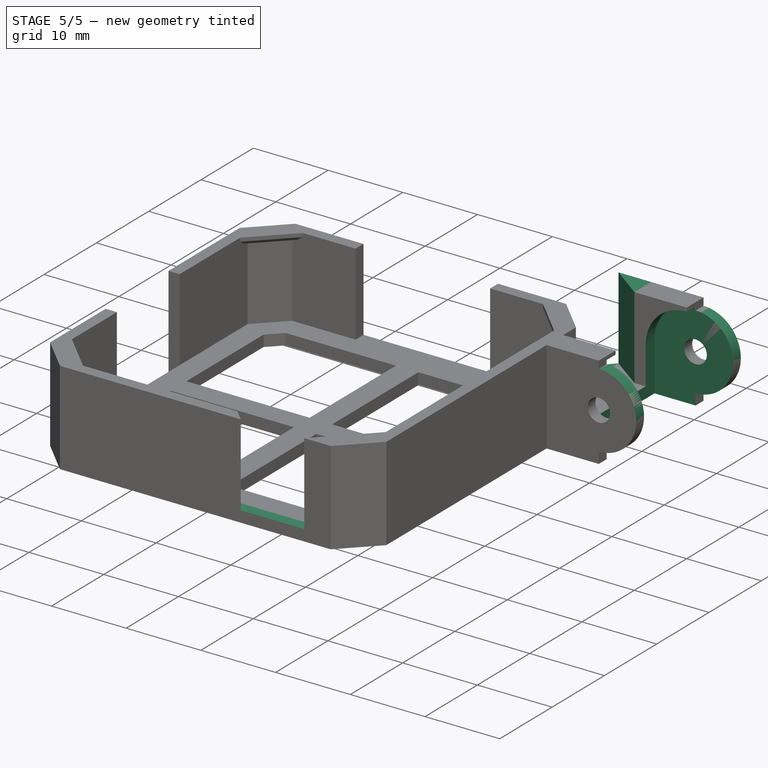
[diagram: stage 5 of 5 — iso view after this stage's code; geometry added in this stage tinted green]
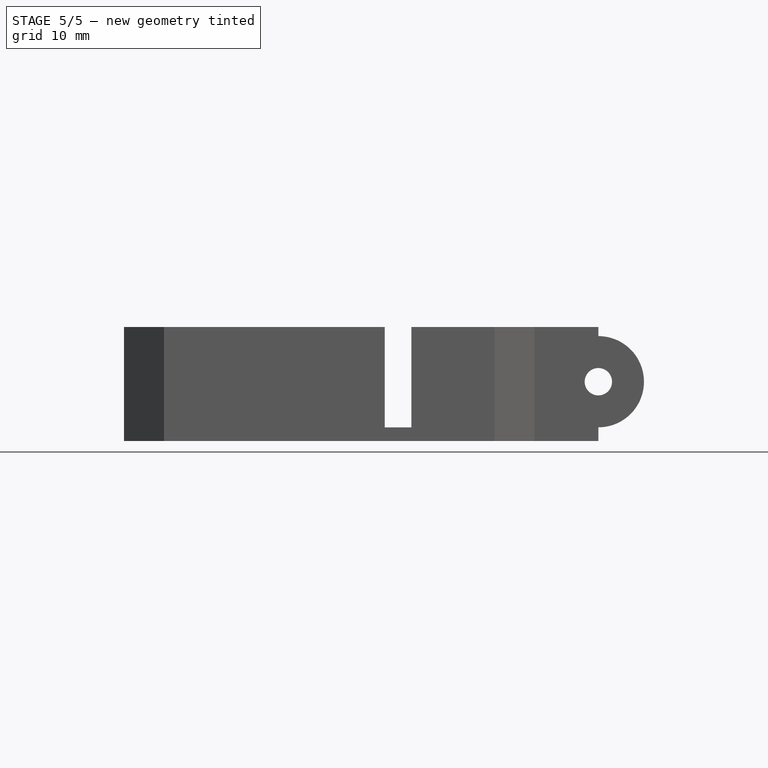
[diagram: stage 5 of 5 — front view after this stage's code; geometry added in this stage tinted green]
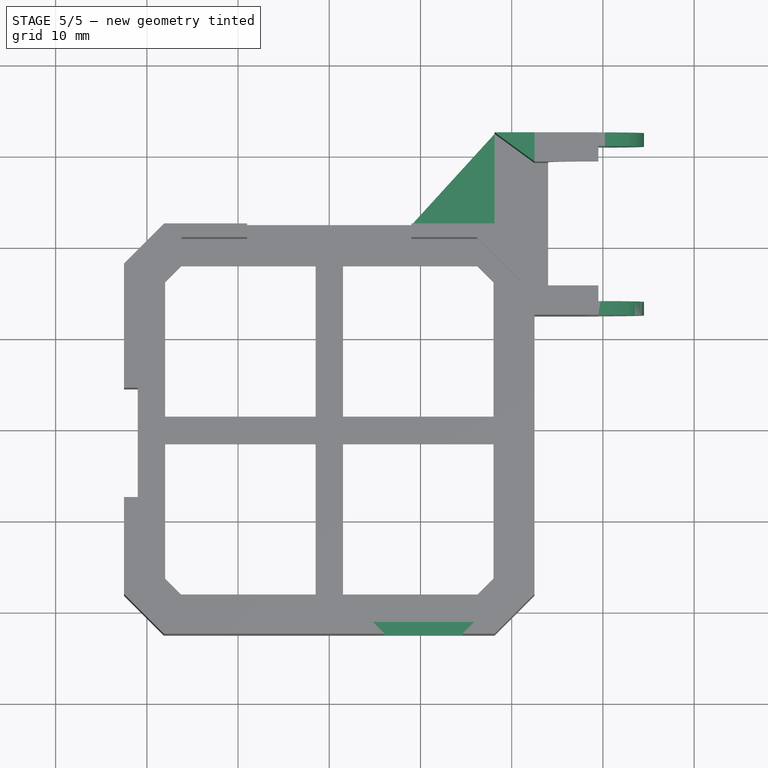
[diagram: stage 5 of 5 — top view after this stage's code; geometry added in this stage tinted green]
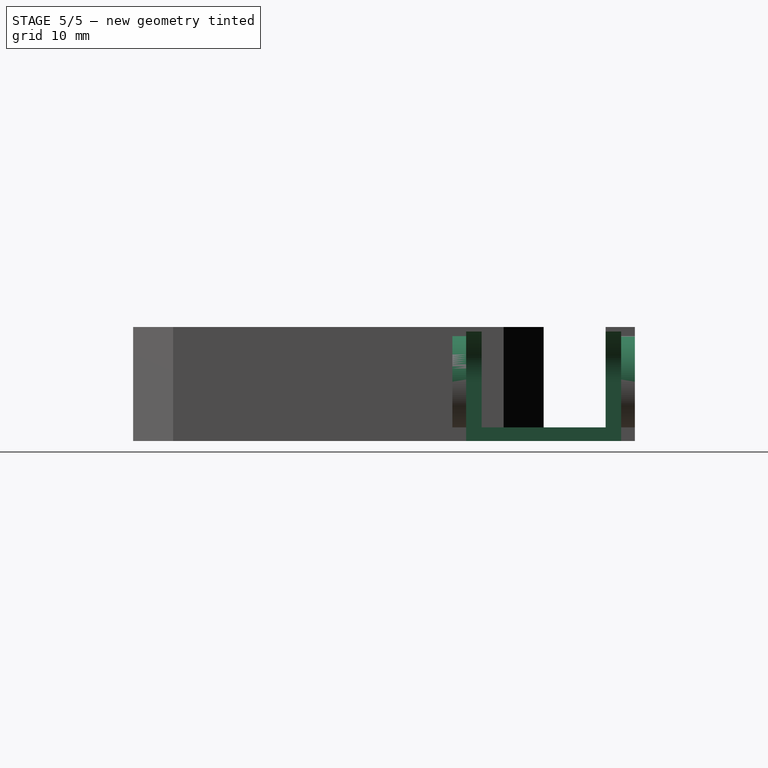
[diagram: stage 5 of 5 — right view after this stage's code; geometry added in this stage tinted green]
FEATURE [Sketcher::SketchObject] Sketch064
  AttachmentOffset = pos=(0,0,-1.7) rot=(0,0,1;0rad)
  ExternalGeometry = -> [Pocket006]
  MapMode = 5
  Placement = pos=(0,31,0) rot=(1,0,0;1.5708rad)
  Support = -> [Pocket006]
  sketch-geometry (4):
    g0: ArcOfCircle CenterX=29.5 CenterY=6.5 CenterZ=0 NormalX=0 NormalY=0 NormalZ=1 AngleXU=0 Radius=5.5 StartAngle=4.71239 EndAngle=9.42478
    g1: LineSegment StartX=24 StartY=6.5 StartZ=0 EndX=24 EndY=-6.3e-11 EndZ=0
    g2: LineSegment StartX=24 StartY=-6.3e-11 StartZ=0 EndX=29.5 EndY=-6.3e-11 EndZ=0
    g3: LineSegment StartX=29.5 StartY=-6.3e-11 StartZ=0 EndX=29.5 EndY=1 EndZ=0
  constraints (12):
    c: Coincident(g-3,g0)
    c: DistanceY(g0,g0) = 0
    c: Radius(g0) = 5.5
    c: Angle(g0) = 4.71239
    c: Coincident(g1,g2)
    c: Coincident(g2,g3)
    c: Vertical(g1)
    c: Vertical(g3)
    c: Horizontal(g2)
    c: Coincident(g1,g0)
    c: Coincident(g3,g0)
    c: DistanceY(g1,g1) = 6.5
FEATURE [PartDesign::Pocket] Pocket007
  BaseFeature = -> Pocket006
  Length = 17
  Length2 = 100
  Profile = -> Sketch064
  Reversed = true
  Type = 0
FEATURE [Sketcher::SketchObject] Sketch065
  ExternalGeometry = -> [Pocket007]
  MapMode = 5
  Placement = pos=(0,0,12.5) rot=(0,0,1;0rad)
  Support = -> [Pocket007]
  sketch-geometry (4):
    g0: LineSegment StartX=16.0858 StartY=-21 StartZ=0 EndX=14.5858 EndY=-22.5 EndZ=0
    g1: LineSegment StartX=14.5858 StartY=-22.5 StartZ=0 EndX=6.08579 EndY=-22.5 EndZ=0
    g2: LineSegment StartX=6.08579 StartY=-22.5 StartZ=0 EndX=4.58579 EndY=-21 EndZ=0
    g3: LineSegment StartX=4.58579 StartY=-21 StartZ=0 EndX=16.0858 EndY=-21 EndZ=0
  constraints (11):
    c: Coincident(g0,g1)
    c: Coincident(g1,g2)
    c: Coincident(g2,g3)
    c: Coincident(g3,g0)
    c: Horizontal(g1)
    c: Horizontal(g3)
    c: Coincident(g0,g-3)
    c: PointOnObject(g0,g-4)
    c: Angle(g0,g-4) = 2.35619
    c: Angle(g1,g2) = 2.35619
    c: DistanceX(g3,g3) = 11.5
FEATURE [PartDesign::Pocket] Pocket008
  BaseFeature = -> Pocket007
  Length = 11
  Length2 = 100
  Profile = -> Sketch065
  Type = 0
FEATURE [Sketcher::SketchObject] Sketch066
  ExternalGeometry = -> [Pocket008]
  MapMode = 5
  Placement = pos=(0,0,1.5) rot=(0,0,1;0rad)
  Support = -> [Pocket008]
  sketch-geometry (3):
    g0: LineSegment StartX=18.1213 StartY=32.5 StartZ=0 EndX=22.5 EndY=32.5 EndZ=0
    g1: LineSegment StartX=22.5 StartY=32.5 StartZ=0 EndX=22.5 EndY=29.3 EndZ=0
    g2: LineSegment StartX=22.5 StartY=29.3 StartZ=0 EndX=18.1213 EndY=32.5 EndZ=0
  constraints (7):
    c: Coincident(g0,g1)
    c: Coincident(g1,g2)
    c: Coincident(g0,g-3)
    c: Coincident(g0,g-4)
    c: Coincident(g1,g-4)
    c: PointOnObject(g2,g-3)
    c: Coincident(g2,g0)
FEATURE [PartDesign::Pad] Pad006
  BaseFeature = -> Pocket008
  Length = 11
  Length2 = 100
  Profile = -> Sketch066
  Type = 0
FEATURE [Sketcher::SketchObject] Sketch067
  ExternalGeometry = -> [Pad006]
  MapMode = 5
  Support = -> [XY_Plane]
  sketch-geometry (3):
    g0: LineSegment StartX=18.1213 StartY=32.5 StartZ=0 EndX=9 EndY=22.5 EndZ=0
    g1: LineSegment StartX=9 StartY=22.5 StartZ=0 EndX=18.1213 EndY=22.5 EndZ=0
    g2: LineSegment StartX=18.1213 StartY=22.5 StartZ=0 EndX=18.1213 EndY=32.5 EndZ=0
  constraints (6):
    c: Coincident(g0,g1)
    c: Coincident(g1,g2)
    c: Coincident(g2,g0)
    c: Coincident(g0,g-4)
    c: Coincident(g-3,g0)
    c: Coincident(g1,g-4)
FEATURE [PartDesign::Pad] Pad007
  BaseFeature = -> Pad006
  Length = 1.5
  Length2 = 100
  Profile = -> Sketch067
  Type = 0
FEATURE [PartDesign::Body] Body
  Group = -> [Sketch,Sketch001,Pad,Sketch002,Pocket,Sketch003,Pocket001,Sketch052,Pad001,Chamfer,Sketch053,Pad002,Chamfer001,Sketch054,Pad003,Chamfer002,Sketch055,Pad004,Chamfer003,Sketch056,Pocket002,Sketch057,Pocket003,Sketch058,Pad005,Sketch059,Pocket004,Sketch060,Pocket005,Sketch063,Pocket006,Sketch064,Pocket007,Sketch065,Pocket008,Sketch066,Pad006,Sketch067,Pad007]
  Origin = -> Origin
  Tip = -> Pad007
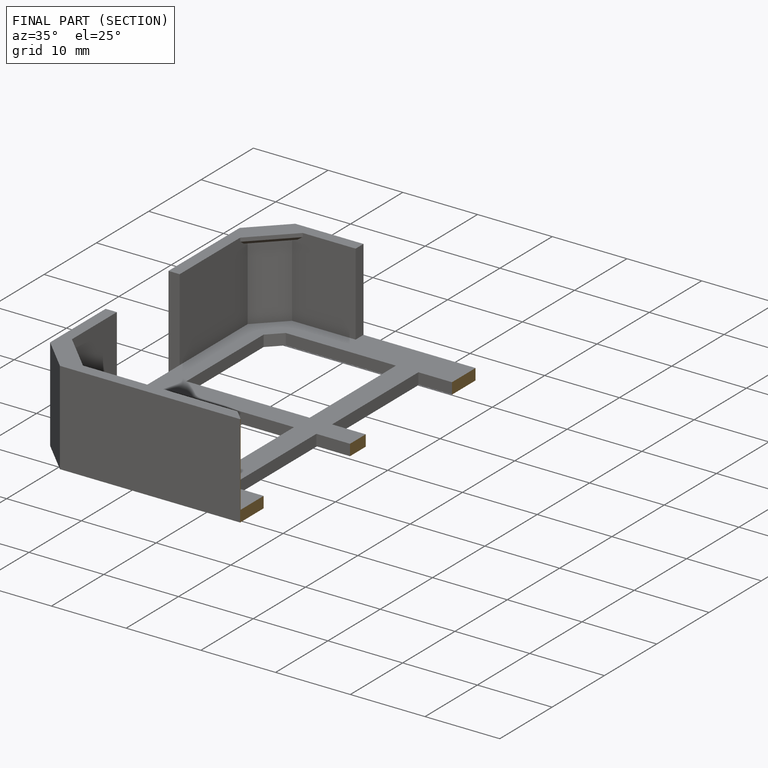
[diagram: finished part — half-section view (interior)]
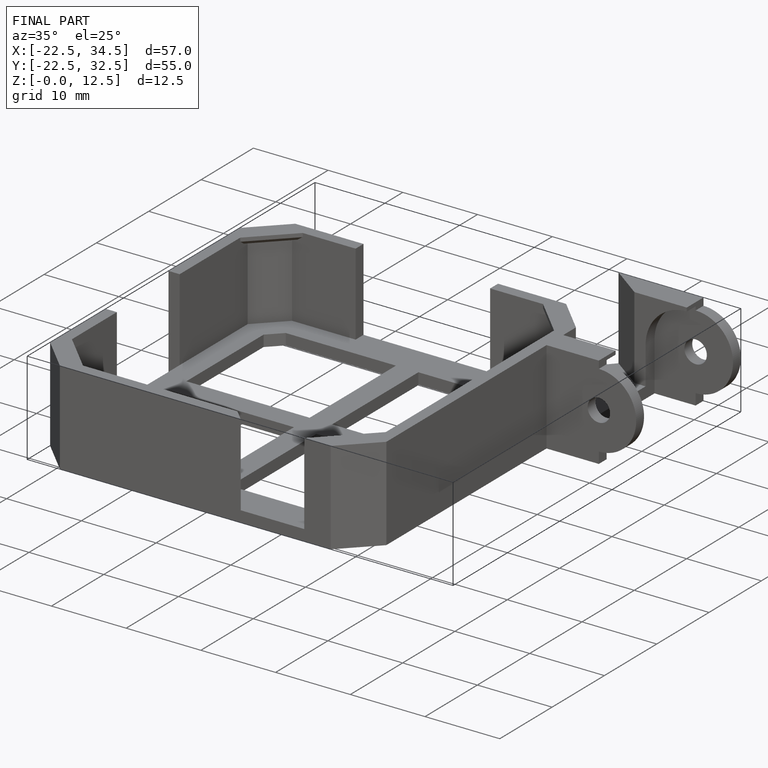
[diagram: finished part — iso view with bounding-box wireframe]
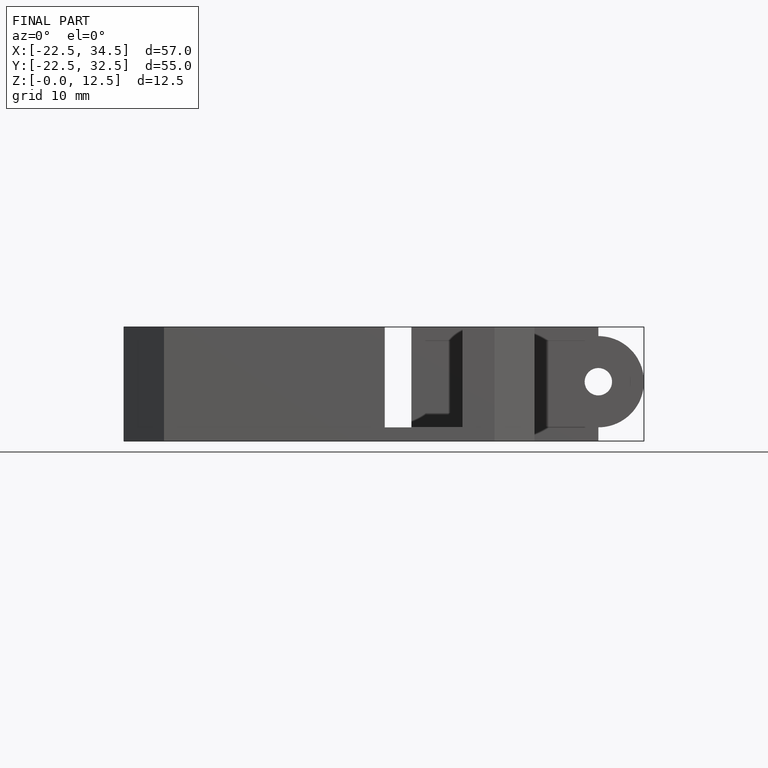
[diagram: finished part — front view with bounding-box wireframe]
